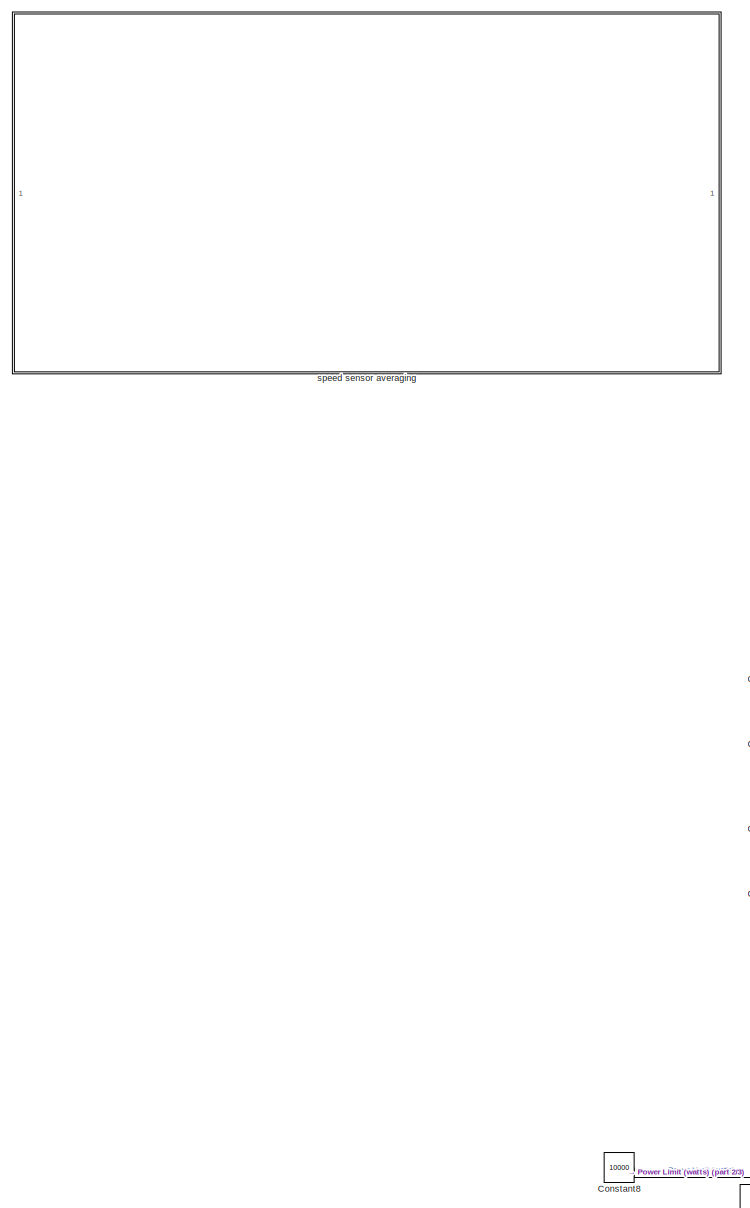
[diagram: root canvas - part 1/3, left side, full height]
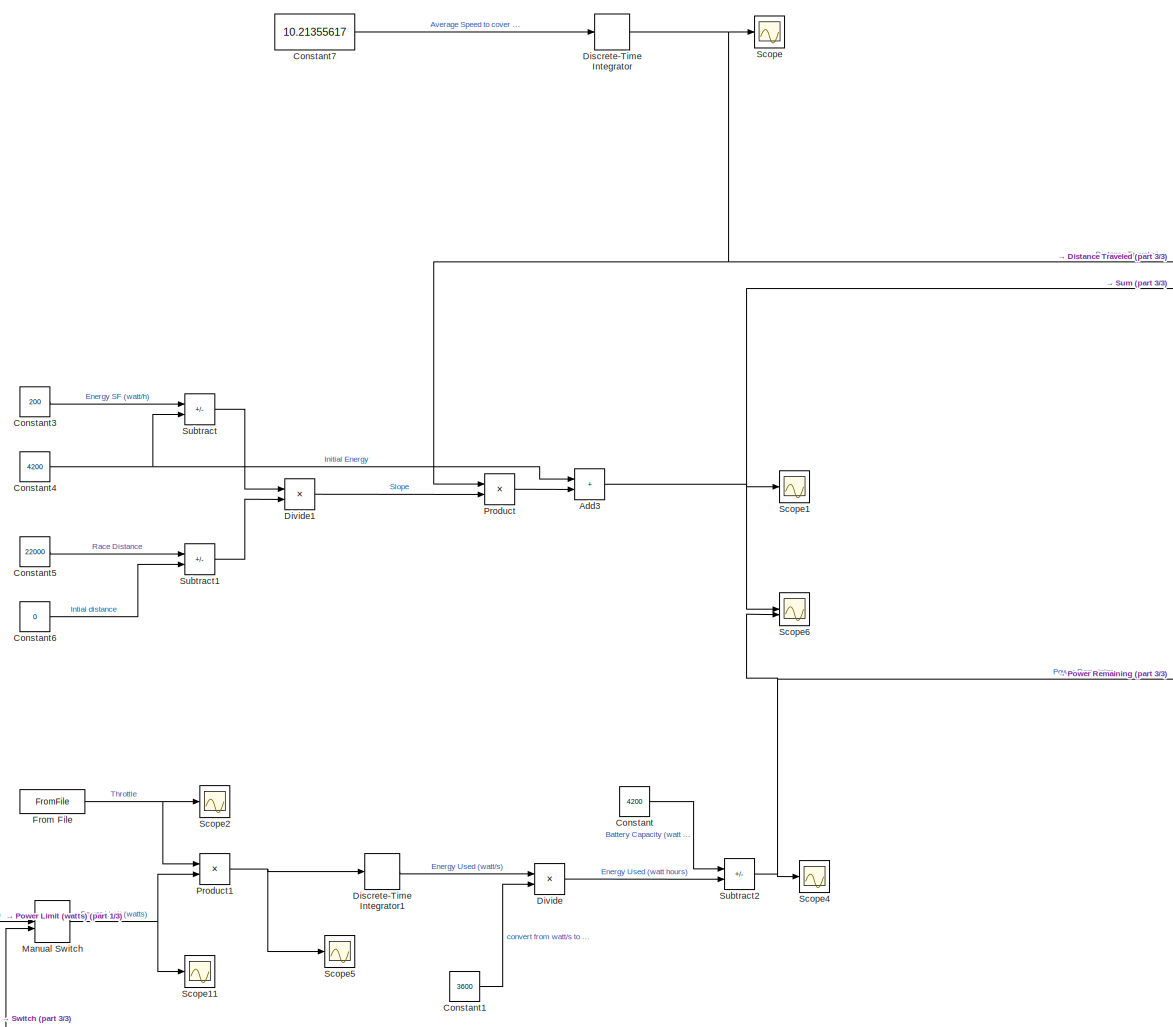
[diagram: root canvas - part 2/3, center side, full height]
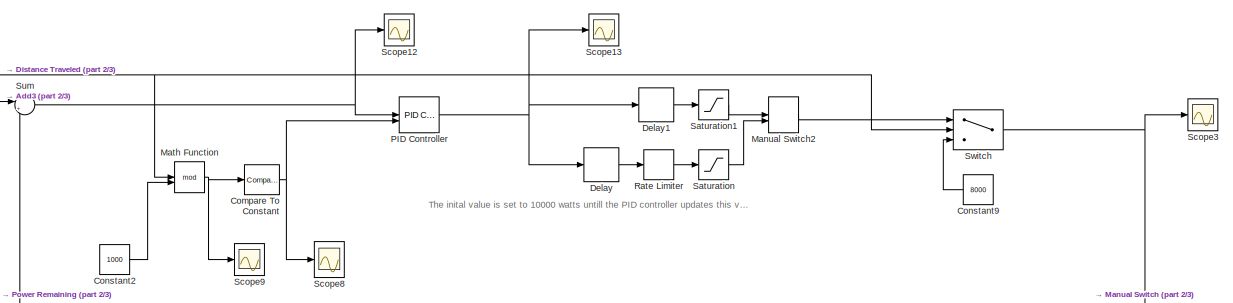
[diagram: root canvas - part 3/3, middle right region]
MODEL slx_8710125ac6cf
KIND model
CONFIG AbsTol = auto
CONFIG EnableMultiTasking = off
CONFIG FixedStep = auto
CONFIG MaxStep = auto
CONFIG MinStep = auto
CONFIG RelTol = 1e-3
CONFIG SampleTimeConstraint = Unconstrained
CONFIG SolverName = VariableStepAuto
CONFIG StartTime = 0.0
CONFIG StopTime = 2154
BLOCK [Sum] Add3
  IconShape = rectangular
BLOCK [Reference] Compare To Constant  REF=simulink/Logic and Bit
Operations/Compare
To Constant
  SourceBlock = simulink/Logic and Bit\nOperations/Compare\nTo Constant
  SourceType = Compare To Constant
BLOCK [Constant] Constant
  Value = 4200
BLOCK [Constant] Constant1
  Value = 3600
BLOCK [Constant] Constant2
  Value = 1000
BLOCK [Constant] Constant3
  Value = 200
BLOCK [Constant] Constant4
  Value = 4200
BLOCK [Constant] Constant5
  Value = 22000
BLOCK [Constant] Constant6
  Value = 0
BLOCK [Constant] Constant7
  Value = 10.21355617
BLOCK [Constant] Constant8
  Value = 10000
BLOCK [Constant] Constant9
  Value = 8000
BLOCK [Delay] Delay
  DelayLength = 1
  InitialCondition = 10000
  InputPortMap = u0
BLOCK [Delay] Delay1
  DelayLength = 1
  InitialCondition = 10000
  InputPortMap = u0
BLOCK [DiscreteIntegrator] Discrete-Time Integrator
  ICPrevOutput = DiscIntNeverNeededParam
  ICPrevScaledInput = DiscIntNeverNeededParam
  InitialConditionSetting = Auto
  SampleTime = 0.01
BLOCK [DiscreteIntegrator] Discrete-Time Integrator1
  ICPrevOutput = DiscIntNeverNeededParam
  ICPrevScaledInput = DiscIntNeverNeededParam
  InitialConditionSetting = Auto
  SampleTime = 0.01
BLOCK [Product] Divide
  Inputs = */
BLOCK [Product] Divide1
  Inputs = */
BLOCK [FromFile] From File
  FileName = endurancedata.mat
  SampleTime = 0.01
BLOCK [ManualSwitch] Manual Switch
  CurrentSetting = 0
BLOCK [ManualSwitch] Manual Switch2
BLOCK [Math] Math Function
  Operator = mod
BLOCK [Reference] PID Controller  REF=slpidlib/PID Controller
  LibrarySourceBlock = simulink/Continuous/PID Controller
  SourceBlock = slpidlib/PID Controller
  SourceType = PID 1dof
BLOCK [Product] Product
BLOCK [Product] Product1
BLOCK [RateLimiter] Rate Limiter
  FallingSlewLimit = -1000
  InitialCondition = 10000
  RisingSlewLimit = 1000
  SampleTimeMode = inherited
BLOCK [Saturate] Saturation
  LowerLimit = 1000
  UpperLimit = 40000
BLOCK [Saturate] Saturation1
  LowerLimit = 1000
  UpperLimit = 40000
BLOCK [Scope] Scope
  Floating = off
  NumInputPorts = 1
  ScopeSpecificationString = Simulink.scopes.TimeScopeBlockCfg('CurrentConfiguration', extmgr.ConfigurationSet(extmgr.Configuration('Core','General UI',true),extmgr.Configuration('Core','Source UI',true),extmgr.Configuration('Sources','WiredSimulink',true),extmgr.Configuration('Visuals','Time Domain',true,'SerializedDisplays',{struct('MinYLimReal','-2750.00000','MaxYLimReal','24749.99999','YLabelReal','','MinYLimMag','  0.000...<+2036ch>
BLOCK [Scope] Scope1
  Floating = off
  NumInputPorts = 1
  ScopeSpecificationString = Simulink.scopes.TimeScopeBlockCfg('CurrentConfiguration', extmgr.ConfigurationSet(extmgr.Configuration('Core','General UI',true),extmgr.Configuration('Core','Source UI',true),extmgr.Configuration('Sources','WiredSimulink',true,'DataLoggingVariableName','ScopeData1'),extmgr.Configuration('Visuals','Time Domain',true,'SerializedDisplays',{struct('MinYLimReal','-300.00000','MaxYLimReal','4700.00000',...<+1470ch>
BLOCK [Scope] Scope11
  Floating = off
  NumInputPorts = 1
  ScopeSpecificationString = Simulink.scopes.TimeScopeBlockCfg('CurrentConfiguration', extmgr.ConfigurationSet(extmgr.Configuration('Core','General UI',true),extmgr.Configuration('Core','Source UI',true),extmgr.Configuration('Sources','WiredSimulink',true,'DataLoggingVariableName','ScopeData1'),extmgr.Configuration('Visuals','Time Domain',true,'SerializedDisplays',{struct('MinYLimReal','-1373.6153','MaxYLimReal','12359.40527'...<+1535ch>
BLOCK [Scope] Scope12
  Floating = off
  NumInputPorts = 1
  ScopeSpecificationString = Simulink.scopes.TimeScopeBlockCfg('CurrentConfiguration', extmgr.ConfigurationSet(extmgr.Configuration('Core','General UI',true),extmgr.Configuration('Core','Source UI',true),extmgr.Configuration('Sources','WiredSimulink',true,'DataLoggingVariableName','ScopeData1'),extmgr.Configuration('Visuals','Time Domain',true,'SerializedDisplays',{struct('MinYLimReal','-34.75292','MaxYLimReal','21.42444','YL...<+1457ch>
BLOCK [Scope] Scope13
  Floating = off
  NumInputPorts = 1
  ScopeSpecificationString = Simulink.scopes.TimeScopeBlockCfg('CurrentConfiguration', extmgr.ConfigurationSet(extmgr.Configuration('Core','General UI',true),extmgr.Configuration('Core','Source UI',true),extmgr.Configuration('Sources','WiredSimulink',true,'DataLoggingVariableName','ScopeData2'),extmgr.Configuration('Visuals','Time Domain',true,'SerializedDisplays',{struct('MinYLimReal','-8951.3513','MaxYLimReal','20893.62231'...<+1530ch>
BLOCK [Scope] Scope2
  Floating = off
  NumInputPorts = 1
  ScopeSpecificationString = Simulink.scopes.TimeScopeBlockCfg('CurrentConfiguration', extmgr.ConfigurationSet(extmgr.Configuration('Core','General UI',true),extmgr.Configuration('Core','Source UI',true),extmgr.Configuration('Sources','WiredSimulink',true,'DataLoggingVariableName','ScopeData2'),extmgr.Configuration('Visuals','Time Domain',true,'SerializedDisplays',{struct('MinYLimReal','0.99563','MaxYLimReal','1.00092','YLabe...<+1473ch>
BLOCK [Scope] Scope3
  Floating = off
  NumInputPorts = 1
  ScopeSpecificationString = Simulink.scopes.TimeScopeBlockCfg('CurrentConfiguration', extmgr.ConfigurationSet(extmgr.Configuration('Core','General UI',true),extmgr.Configuration('Core','Source UI',true),extmgr.Configuration('Sources','WiredSimulink',true,'DataLoggingVariableName','ScopeData3'),extmgr.Configuration('Visuals','Time Domain',true,'SerializedDisplays',{struct('MinYLimReal','-1085.52262','MaxYLimReal','34003.69437...<+1524ch>
BLOCK [Scope] Scope4
  Floating = off
  NumInputPorts = 1
  ScopeSpecificationString = Simulink.scopes.TimeScopeBlockCfg('CurrentConfiguration', extmgr.ConfigurationSet(extmgr.Configuration('Core','General UI',true),extmgr.Configuration('Core','Source UI',true),extmgr.Configuration('Sources','WiredSimulink',true,'DataLoggingVariableName','ScopeData4'),extmgr.Configuration('Visuals','Time Domain',true,'SerializedDisplays',{struct('MinYLimReal','-296.93365','MaxYLimReal','4699.65929',...<+1475ch>
BLOCK [Scope] Scope5
  Floating = off
  NumInputPorts = 1
  ScopeSpecificationString = Simulink.scopes.TimeScopeBlockCfg('CurrentConfiguration', extmgr.ConfigurationSet(extmgr.Configuration('Core','General UI',true),extmgr.Configuration('Core','Source UI',true),extmgr.Configuration('Sources','WiredSimulink',true,'DataLoggingVariableName','ScopeData5'),extmgr.Configuration('Visuals','Time Domain',true,'SerializedDisplays',{struct('MinYLimReal','7999.98222','MaxYLimReal','8000.01146',...<+1497ch>
BLOCK [Scope] Scope6
  Floating = off
  NumInputPorts = 2
  ScopeSpecificationString = Simulink.scopes.TimeScopeBlockCfg('CurrentConfiguration', extmgr.ConfigurationSet(extmgr.Configuration('Core','General UI',true),extmgr.Configuration('Core','Source UI',true),extmgr.Configuration('Sources','WiredSimulink',true,'DataLoggingVariableName','ScopeData6'),extmgr.Configuration('Visuals','Time Domain',true,'SerializedDisplays',{struct('MinYLimReal','-300.00000','MaxYLimReal','4700.00000',...<+1511ch>
BLOCK [Scope] Scope8
  Floating = off
  NumInputPorts = 1
  ScopeSpecificationString = Simulink.scopes.TimeScopeBlockCfg('CurrentConfiguration', extmgr.ConfigurationSet(extmgr.Configuration('Core','General UI',true),extmgr.Configuration('Core','Source UI',true),extmgr.Configuration('Sources','WiredSimulink',true,'DataLoggingVariableName','ScopeData8'),extmgr.Configuration('Visuals','Time Domain',true,'SerializedDisplays',{struct('MinYLimReal','-0.125','MaxYLimReal','1.125','YLabelRe...<+1474ch>
BLOCK [Scope] Scope9
  Floating = off
  NumInputPorts = 1
  ScopeSpecificationString = Simulink.scopes.TimeScopeBlockCfg('CurrentConfiguration', extmgr.ConfigurationSet(extmgr.Configuration('Core','General UI',true),extmgr.Configuration('Core','Source UI',true),extmgr.Configuration('Sources','WiredSimulink',true,'DataLoggingVariableName','ScopeData9'),extmgr.Configuration('Visuals','Time Domain',true,'SerializedDisplays',{struct('MinYLimReal','-125.00000','MaxYLimReal','1124.99999',...<+1479ch>
BLOCK [Sum] Subtract
  IconShape = rectangular
  Inputs = +-
BLOCK [Sum] Subtract1
  IconShape = rectangular
  Inputs = +-
BLOCK [Sum] Subtract2
  IconShape = rectangular
  Inputs = +-
BLOCK [Sum] Sum
  Inputs = |+-
BLOCK [Switch] Switch
  Criteria = u2 > Threshold
  InputSameDT = off
  SaturateOnIntegerOverflow = off
  Threshold = 1000
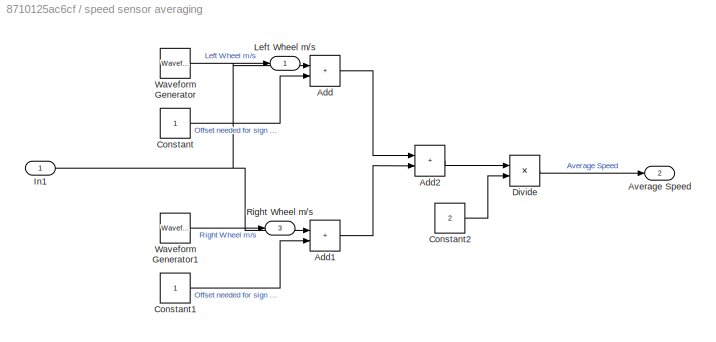
BLOCK [SubSystem] speed sensor averaging
  Commented = on
BLOCK [Sum] speed sensor averaging/Add
  IconShape = rectangular
BLOCK [Sum] speed sensor averaging/Add1
  IconShape = rectangular
BLOCK [Sum] speed sensor averaging/Add2
  IconShape = rectangular
BLOCK [Outport] speed sensor averaging/Average Speed
  Port = 2
BLOCK [Constant] speed sensor averaging/Constant
BLOCK [Constant] speed sensor averaging/Constant1
BLOCK [Constant] speed sensor averaging/Constant2
  Value = 2
BLOCK [Product] speed sensor averaging/Divide
  Inputs = */
BLOCK [Inport] speed sensor averaging/In1
BLOCK [Outport] speed sensor averaging/Left Wheel m//s
BLOCK [Outport] speed sensor averaging/Right Wheel m//s
  Port = 3
BLOCK [Reference] speed sensor averaging/Waveform Generator  REF=simulink/Sources/Waveform
Generator
  SourceBlock = simulink/Sources/Waveform\nGenerator
  SourceType = WaveformGenerator
BLOCK [Reference] speed sensor averaging/Waveform Generator1  REF=simulink/Sources/Waveform
Generator
  SourceBlock = simulink/Sources/Waveform\nGenerator
  SourceType = WaveformGenerator
ANNOTATION (root): The inital value is set to 10000 watts untill the PID controller updates this value
NET Add3:1 -> Scope1:1, Scope6:1, Sum:1
NET Compare To Constant:1 -> PID Controller:2, Scope8:1
LINE Constant1:1 -> Divide:2
LINE Constant2:1 -> Math Function:2
LINE Constant3:1 -> Subtract:1
NET Constant4:1 -> Add3:1, Subtract:2
LINE Constant5:1 -> Subtract1:1
LINE Constant6:1 -> Subtract1:2
LINE Constant7:1 -> Discrete-Time Integrator:1
LINE Constant8:1 -> Manual Switch:1
LINE Constant9:1 -> Switch:3
LINE Constant:1 -> Subtract2:1
LINE Delay1:1 -> Saturation1:1
LINE Delay:1 -> Rate Limiter:1
LINE Discrete-Time Integrator1:1 -> Divide:1
NET Discrete-Time Integrator:1 -> Math Function:1, Product:1, Scope:1, Switch:2
LINE Divide1:1 -> Product:2
LINE Divide:1 -> Subtract2:2
NET From File:1 -> Product1:1, Scope2:1
LINE Manual Switch2:1 -> Switch:1
NET Manual Switch:1 -> Product1:2, Scope11:1
NET Math Function:1 -> Compare To Constant:1, Scope9:1
NET PID Controller:1 -> Delay1:1, Delay:1, Scope13:1
NET Product1:1 -> Discrete-Time Integrator1:1, Scope5:1
LINE Product:1 -> Add3:2
LINE Rate Limiter:1 -> Saturation:1
LINE Saturation1:1 -> Manual Switch2:1
LINE Saturation:1 -> Manual Switch2:2
LINE Subtract1:1 -> Divide1:2
NET Subtract2:1 -> Scope4:1, Scope6:2, Sum:2
LINE Subtract:1 -> Divide1:1
NET Sum:1 -> PID Controller:1, Scope12:1
NET Switch:1 -> Manual Switch:2, Scope3:1
LINE speed sensor averaging/Add1:1 -> speed sensor averaging/Add2:2
LINE speed sensor averaging/Add2:1 -> speed sensor averaging/Divide:1
LINE speed sensor averaging/Add:1 -> speed sensor averaging/Add2:1
LINE speed sensor averaging/Constant1:1 -> speed sensor averaging/Add1:2
LINE speed sensor averaging/Constant2:1 -> speed sensor averaging/Divide:2
LINE speed sensor averaging/Constant:1 -> speed sensor averaging/Add:2
LINE speed sensor averaging/Divide:1 -> speed sensor averaging/Average Speed:1
NET speed sensor averaging/In1:1 -> speed sensor averaging/Add1:1, speed sensor averaging/Add:1
LINE speed sensor averaging/Waveform Generator1:1 -> speed sensor averaging/Right Wheel m//s:1
LINE speed sensor averaging/Waveform Generator:1 -> speed sensor averaging/Left Wheel m//s:1
note: NET lines group one-source signal fan-out (src -> all destinations, sorted); 1:1 wires keep LINE
